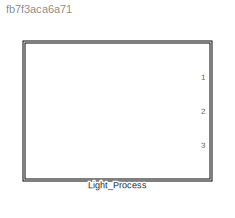
MODEL slx_fb7f3aca6a71
KIND model
CONFIG AbsTol = auto
CONFIG EnableMultiTasking = off
CONFIG FixedStep = 0.001
CONFIG MaxStep = auto
CONFIG MinStep = auto
CONFIG RelTol = 1e-3
CONFIG SampleTimeConstraint = Unconstrained
CONFIG Solver = FixedStepAuto
CONFIG SolverName = FixedStepAuto
CONFIG StartTime = 0.0
CONFIG StopTime = 10.0
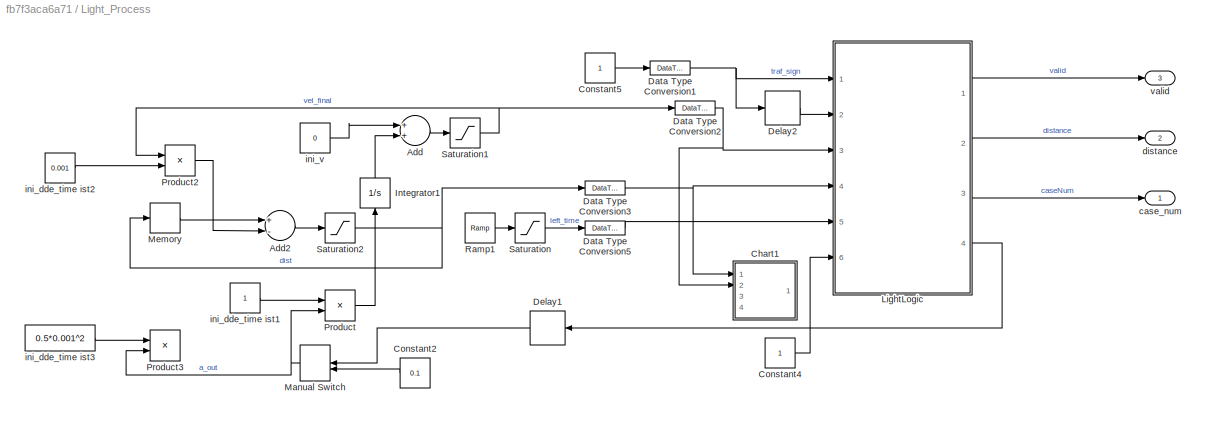
BLOCK [SubSystem] Light_Process
  Ports = [0, 3]
  RequestExecContextInheritance = off
BLOCK [Sum] Light_Process/Add
  InputSameDT = off
  OutDataTypeStr = Inherit: Inherit via internal rule
  Ports = [2, 1]
  SaturateOnIntegerOverflow = off
BLOCK [Sum] Light_Process/Add2
  InputSameDT = off
  Inputs = +-
  OutDataTypeStr = Inherit: Inherit via internal rule
  Ports = [2, 1]
  SaturateOnIntegerOverflow = off
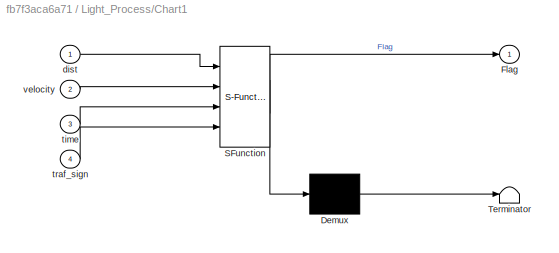
BLOCK [SubSystem] Light_Process/Chart1
  ErrorFcn = Stateflow.Translate.translate
  PermitHierarchicalResolution = ExplicitOnly
  Ports = [4, 1]
  RequestExecContextInheritance = off
  SFBlockType = Chart
  TreatAsAtomicUnit = on
BLOCK [Demux] Light_Process/Chart1/ Demux 
  Outputs = 1
  Ports = [1, 1]
BLOCK [S-Function] Light_Process/Chart1/ SFunction 
  EnableBusSupport = on
  FunctionName = sf_sfun
  PortCounts = [4 2]
  Ports = [4, 2]
  SFcnIsStateOwnerBlock = off
  SFunctionDeploymentMode = off
  Tag = Stateflow S-Function test_on_intes_cross2018_acc 2
BLOCK [Terminator] Light_Process/Chart1/ Terminator 
BLOCK [Outport] Light_Process/Chart1/Flag
  IconDisplay = Port number
BLOCK [Inport] Light_Process/Chart1/dist
  IconDisplay = Port number
BLOCK [Inport] Light_Process/Chart1/time
  IconDisplay = Port number
  Port = 3
BLOCK [Inport] Light_Process/Chart1/traf_sign
  IconDisplay = Port number
  Port = 4
BLOCK [Inport] Light_Process/Chart1/velocity
  IconDisplay = Port number
  Port = 2
BLOCK [Constant] Light_Process/Constant2
  OutDataTypeStr = single
  Value = 0.1
BLOCK [Constant] Light_Process/Constant4
  OutDataTypeStr = single
BLOCK [Constant] Light_Process/Constant5
  OutDataTypeStr = single
BLOCK [DataTypeConversion] Light_Process/Data Type Conversion1
  OutDataTypeStr = double
  RndMeth = Floor
  SaturateOnIntegerOverflow = off
BLOCK [DataTypeConversion] Light_Process/Data Type Conversion2
  OutDataTypeStr = double
  RndMeth = Floor
  SaturateOnIntegerOverflow = off
BLOCK [DataTypeConversion] Light_Process/Data Type Conversion3
  OutDataTypeStr = double
  RndMeth = Floor
  SaturateOnIntegerOverflow = off
BLOCK [DataTypeConversion] Light_Process/Data Type Conversion5
  OutDataTypeStr = double
  RndMeth = Floor
  SaturateOnIntegerOverflow = off
BLOCK [Delay] Light_Process/Delay1
  DelayLength = 1
  InputPortMap = u0
  Ports = [1, 1]
BLOCK [Delay] Light_Process/Delay2
  DelayLength = 1
  InputPortMap = u0
  Ports = [1, 1]
BLOCK [Integrator] Light_Process/Integrator1
  Ports = [1, 1]
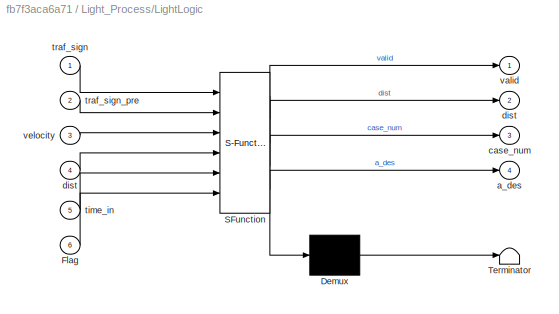
BLOCK [SubSystem] Light_Process/LightLogic
  ErrorFcn = Stateflow.Translate.translate
  PermitHierarchicalResolution = ExplicitOnly
  Ports = [6, 4]
  RequestExecContextInheritance = off
  SFBlockType = MATLAB Function
  TreatAsAtomicUnit = on
BLOCK [Demux] Light_Process/LightLogic/ Demux 
  Outputs = 1
  Ports = [1, 1]
BLOCK [S-Function] Light_Process/LightLogic/ SFunction 
  EnableBusSupport = on
  FunctionName = sf_sfun
  PortCounts = [6 5]
  Ports = [6, 5]
  SFcnIsStateOwnerBlock = off
  SFunctionDeploymentMode = off
  Tag = Stateflow S-Function test_on_intes_cross2018_acc 9
BLOCK [Terminator] Light_Process/LightLogic/ Terminator 
BLOCK [Inport] Light_Process/LightLogic/Flag
  IconDisplay = Port number
  Port = 6
BLOCK [Outport] Light_Process/LightLogic/a_des
  IconDisplay = Port number
  Port = 4
BLOCK [Outport] Light_Process/LightLogic/case_num
  IconDisplay = Port number
  Port = 3
  VectorParamsAs1DForOutWhenUnconnected = on
BLOCK [Outport] Light_Process/LightLogic/dist
  IconDisplay = Port number
  Port = 2
  VectorParamsAs1DForOutWhenUnconnected = on
BLOCK [Inport] Light_Process/LightLogic/dist 
  IconDisplay = Port number
  Port = 4
BLOCK [Inport] Light_Process/LightLogic/time_in
  IconDisplay = Port number
  Port = 5
BLOCK [Inport] Light_Process/LightLogic/traf_sign
  IconDisplay = Port number
BLOCK [Inport] Light_Process/LightLogic/traf_sign_pre
  IconDisplay = Port number
  Port = 2
BLOCK [Outport] Light_Process/LightLogic/valid
  IconDisplay = Port number
  VectorParamsAs1DForOutWhenUnconnected = on
BLOCK [Inport] Light_Process/LightLogic/velocity
  IconDisplay = Port number
  Port = 3
BLOCK [ManualSwitch] Light_Process/Manual Switch
BLOCK [Memory] Light_Process/Memory
  InitialCondition = 20
BLOCK [Product] Light_Process/Product
  InputSameDT = off
  OutDataTypeStr = Inherit: Inherit via internal rule
  Ports = [2, 1]
  RndMeth = Floor
  SaturateOnIntegerOverflow = off
BLOCK [Product] Light_Process/Product2
  InputSameDT = off
  OutDataTypeStr = Inherit: Inherit via internal rule
  Ports = [2, 1]
  RndMeth = Floor
  SaturateOnIntegerOverflow = off
BLOCK [Product] Light_Process/Product3
  InputSameDT = off
  OutDataTypeStr = Inherit: Inherit via internal rule
  Ports = [2, 1]
  RndMeth = Floor
  SaturateOnIntegerOverflow = off
BLOCK [Reference] Light_Process/Ramp1  REF=simulink/Sources/Ramp
  Ports = [0, 1]
  SourceBlock = simulink/Sources/Ramp
  SourceProductBaseCode = SL
  SourceProductName = Simulink
  SourceType = Ramp
BLOCK [Saturate] Light_Process/Saturation
  InputPortMap = u0
  LowerLimit = 0
  Ports = [1, 1]
  UpperLimit = 20
BLOCK [Saturate] Light_Process/Saturation1
  InputPortMap = u0
  LowerLimit = 0
  Ports = [1, 1]
  UpperLimit = inf
BLOCK [Saturate] Light_Process/Saturation2
  InputPortMap = u0
  LowerLimit = -10
  Ports = [1, 1]
  UpperLimit = inf
BLOCK [Outport] Light_Process/case_num
  IconDisplay = Port number
BLOCK [Outport] Light_Process/distance
  IconDisplay = Port number
  Port = 2
BLOCK [Constant] Light_Process/ini_dde_time ist1
  OutDataTypeStr = single
BLOCK [Constant] Light_Process/ini_dde_time ist2
  OutDataTypeStr = single
  Value = 0.001
BLOCK [Constant] Light_Process/ini_dde_time ist3
  OutDataTypeStr = single
  Value = 0.5*0.001^2
BLOCK [Constant] Light_Process/ini_v 
  OutDataTypeStr = single
  Value = 0
BLOCK [Outport] Light_Process/valid
  IconDisplay = Port number
  Port = 3
LINE Light_Process/Add2:1 -> Light_Process/Saturation2:1
LINE Light_Process/Add:1 -> Light_Process/Saturation1:1
LINE Light_Process/Constant2:1 -> Light_Process/Manual Switch:2
LINE Light_Process/Constant4:1 -> Light_Process/LightLogic:6
LINE Light_Process/Constant5:1 -> Light_Process/Data Type Conversion1:1
NET Light_Process/Data Type Conversion1:1 -> Light_Process/Delay2:1, Light_Process/LightLogic:1
NET Light_Process/Data Type Conversion2:1 -> Light_Process/Chart1:2, Light_Process/LightLogic:3
NET Light_Process/Data Type Conversion3:1 -> Light_Process/Chart1:1, Light_Process/LightLogic:4
LINE Light_Process/Data Type Conversion5:1 -> Light_Process/LightLogic:5
LINE Light_Process/Delay1:1 -> Light_Process/Manual Switch:1
LINE Light_Process/Delay2:1 -> Light_Process/LightLogic:2
LINE Light_Process/Integrator1:1 -> Light_Process/Add:2
LINE Light_Process/LightLogic:1 -> Light_Process/valid:1
LINE Light_Process/LightLogic:2 -> Light_Process/distance:1
LINE Light_Process/LightLogic:3 -> Light_Process/case_num:1
LINE Light_Process/LightLogic:4 -> Light_Process/Delay1:1
NET Light_Process/Manual Switch:1 -> Light_Process/Product3:2, Light_Process/Product:2
LINE Light_Process/Memory:1 -> Light_Process/Add2:1
LINE Light_Process/Product2:1 -> Light_Process/Add2:2
LINE Light_Process/Product:1 -> Light_Process/Integrator1:1
LINE Light_Process/Ramp1:1 -> Light_Process/Saturation:1
NET Light_Process/Saturation1:1 -> Light_Process/Data Type Conversion2:1, Light_Process/Product2:1
NET Light_Process/Saturation2:1 -> Light_Process/Data Type Conversion3:1, Light_Process/Memory:1
LINE Light_Process/Saturation:1 -> Light_Process/Data Type Conversion5:1
LINE Light_Process/ini_dde_time ist1:1 -> Light_Process/Product:1
LINE Light_Process/ini_dde_time ist2:1 -> Light_Process/Product2:2
LINE Light_Process/ini_dde_time ist3:1 -> Light_Process/Product3:1
LINE Light_Process/ini_v :1 -> Light_Process/Add:1
note: NET lines group one-source signal fan-out (src -> all destinations, sorted); 1:1 wires keep LINE
CHART Light_Process/Chart1 states=3 transitions=4
  STATE_LABEL 'Off\nen:\nFlag=0;'
  STATE_LABEL 'init\nen:\nFlag=0;'
  STATE_LABEL 'On\ndu:\nFlag=1;'
CHART Light_Process/LightLogic states=1 transitions=1
  STATE_LABEL 'eML_blk_kernel()'
  STATE_LABEL 'SCRIPT:\nfunction [ valid,dist,case_num,a_des] = intesec_cross( traf_sign,traf_sign_pre, velocity, dist, time_in, Flag)  \n%% this is a function that provide desired velocity, and distance to traffic light;\n    % input: trafic_sign with green = 0; red = 1; yellow = 2;\n    %        velocity in unit of kph;\n    %        dist, and time is distance(m) to cross, and traffic time left\n    %        CONST_L...<+1653ch>'
